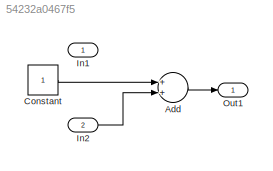
MODEL slx_54232a0467f5
KIND model
CONFIG AbsTol = auto
CONFIG EnableMultiTasking = off
CONFIG FixedStep = auto
CONFIG MaxStep = auto
CONFIG MinStep = auto
CONFIG RelTol = 1e-3
CONFIG SampleTimeConstraint = Unconstrained
CONFIG Solver = VariableStepAuto
CONFIG SolverName = VariableStepAuto
CONFIG StartTime = 0.0
CONFIG StopTime = 10.0
BLOCK [Sum] Add
  InputSameDT = off
  OutDataTypeStr = Inherit: Inherit via internal rule
  Ports = [2, 1]
  SaturateOnIntegerOverflow = off
BLOCK [Constant] Constant
BLOCK [Inport] In1
  IconDisplay = Port number
BLOCK [Inport] In2
  IconDisplay = Port number
  Port = 2
BLOCK [Outport] Out1
  IconDisplay = Port number
LINE Add:1 -> Out1:1
LINE Constant:1 -> Add:1
LINE In2:1 -> Add:2
